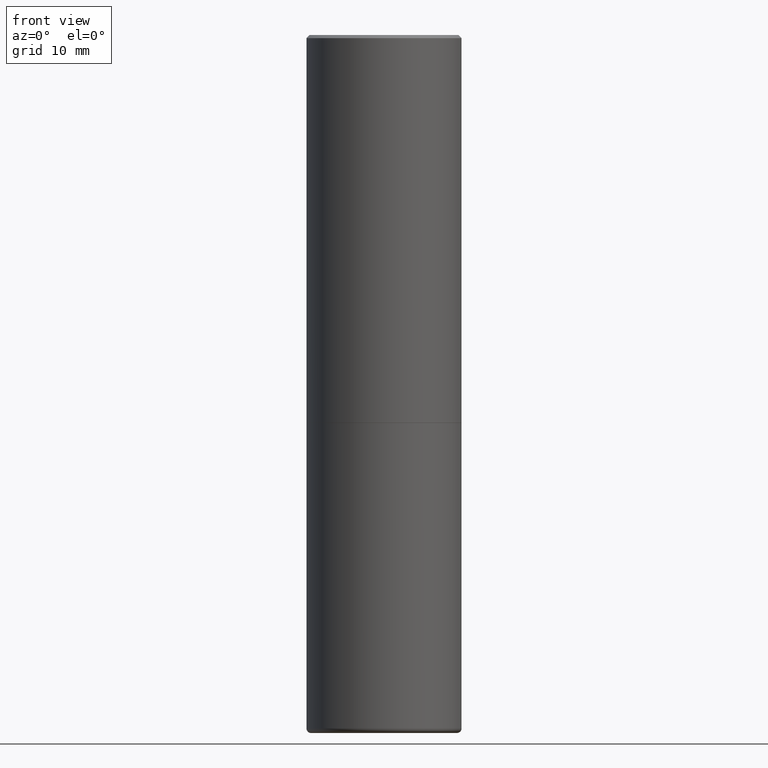
[diagram: clean part render]
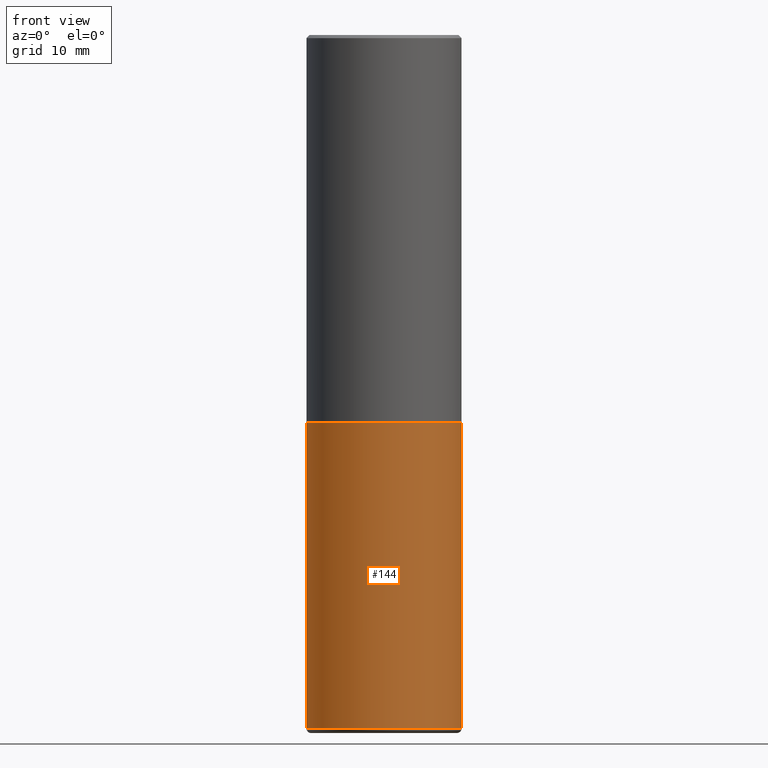
[diagram: same view with one face highlighted and labeled with its STEP entity id]
A machine part, front view. The second image highlights one B-rep face of the part: STEP entity #144.
In plain terms, the highlighted cylindrical surface (partial cylindrical patch) has radius 12.7 mm, axis along (-0, 0, 1).
Its self-contained STEP definition (entity closure, byte-faithful):
#5 = DIRECTION ( 'NONE',  ( -2.445468806185136597E-29, 3.491481338843145583E-15, 1.000000000000000000 ) ) ;
#18 = CIRCLE ( 'NONE', #223, 0.5000000000000000000 ) ;
#27 = FACE_OUTER_BOUND ( 'NONE', #306, .T. ) ;
#35 = LINE ( 'NONE', #285, #48 ) ;
#40 = CIRCLE ( 'NONE', #69, 0.5000000000000000000 ) ;
#43 = ORIENTED_EDGE ( 'NONE', *, *, #134, .T. ) ;
#48 = VECTOR ( 'NONE', #156, 39.37007874015748143 ) ;
#69 = AXIS2_PLACEMENT_3D ( 'NONE', #255, #5, #157 ) ;
#75 = VERTEX_POINT ( 'NONE', #164 ) ;
#81 = DIRECTION ( 'NONE',  ( 1.000000000000000000, -6.982962677686269077E-15, 0.000000000000000000 ) ) ;
#112 = CARTESIAN_POINT ( 'NONE',  ( 0.5000000000000000000, -3.491481338843133355E-15, 2.438088387897967896E-29 ) ) ;
#127 = EDGE_CURVE ( 'NONE', #75, #170, #18, .T. ) ;
#133 = ORIENTED_EDGE ( 'NONE', *, *, #284, .T. ) ;
#134 = EDGE_CURVE ( 'NONE', #329, #170, #271, .T. ) ;
#144 = ADVANCED_FACE ( 'NONE', ( #27 ), #379, .T. ) ;
#147 = CARTESIAN_POINT ( 'NONE',  ( 6.113672015462842613E-29, -8.728703347107864943E-15, -2.500000000000000000 ) ) ;
#156 = DIRECTION ( 'NONE',  ( -2.445468806185136877E-29, 3.491481338843145188E-15, 1.000000000000000000 ) ) ;
#157 = DIRECTION ( 'NONE',  ( 1.000000000000000000, -6.982962677686262766E-15, 0.000000000000000000 ) ) ;
#164 = CARTESIAN_POINT ( 'NONE',  ( -0.5000000000000000000, -8.615098787067861728E-15, -2.500000000000000000 ) ) ;
#170 = VERTEX_POINT ( 'NONE', #381 ) ;
#205 = DIRECTION ( 'NONE',  ( -2.445468806185136597E-29, 3.491481338843145583E-15, 1.000000000000000000 ) ) ;
#218 = VERTEX_POINT ( 'NONE', #224 ) ;
#219 = EDGE_CURVE ( 'NONE', #218, #75, #35, .T. ) ;
#223 = AXIS2_PLACEMENT_3D ( 'NONE', #147, #244, #81 ) ;
#224 = CARTESIAN_POINT ( 'NONE',  ( -0.4999999999999998335, -1.205420790582835944E-14, -4.469999999999999751 ) ) ;
#244 = DIRECTION ( 'NONE',  ( -2.445468806185136597E-29, 3.491481338843145583E-15, 1.000000000000000000 ) ) ;
#255 = CARTESIAN_POINT ( 'NONE',  ( 1.093124556364756005E-28, -1.560692158462886037E-14, -4.469999999999999751 ) ) ;
#270 = VECTOR ( 'NONE', #312, 39.37007874015748143 ) ;
#271 = LINE ( 'NONE', #112, #270 ) ;
#284 = EDGE_CURVE ( 'NONE', #218, #329, #40, .T. ) ;
#285 = CARTESIAN_POINT ( 'NONE',  ( -0.5000000000000000000, 3.552713678800500929E-15, -2.459467545127452891E-29 ) ) ;
#306 = EDGE_LOOP ( 'NONE', ( #343, #133, #43, #361 ) ) ;
#312 = DIRECTION ( 'NONE',  ( -2.445468806185136877E-29, 3.491481338843145188E-15, 1.000000000000000000 ) ) ;
#329 = VERTEX_POINT ( 'NONE', #337 ) ;
#337 = CARTESIAN_POINT ( 'NONE',  ( 0.4999999999999998335, -1.909840292347199373E-14, -4.469999999999999751 ) ) ;
#343 = ORIENTED_EDGE ( 'NONE', *, *, #219, .F. ) ;
#350 = DIRECTION ( 'NONE',  ( 1.000000000000000000, -6.982962677686266711E-15, 4.876176775795935793E-29 ) ) ;
#351 = CARTESIAN_POINT ( 'NONE',  ( 0.000000000000000000, 0.000000000000000000, 0.000000000000000000 ) ) ;
#361 = ORIENTED_EDGE ( 'NONE', *, *, #127, .F. ) ;
#379 = CYLINDRICAL_SURFACE ( 'NONE', #399, 0.5000000000000000000 ) ;
#381 = CARTESIAN_POINT ( 'NONE',  ( 0.5000000000000000000, -1.222018468595099830E-14, -2.500000000000000000 ) ) ;
#399 = AXIS2_PLACEMENT_3D ( 'NONE', #351, #205, #350 ) ;